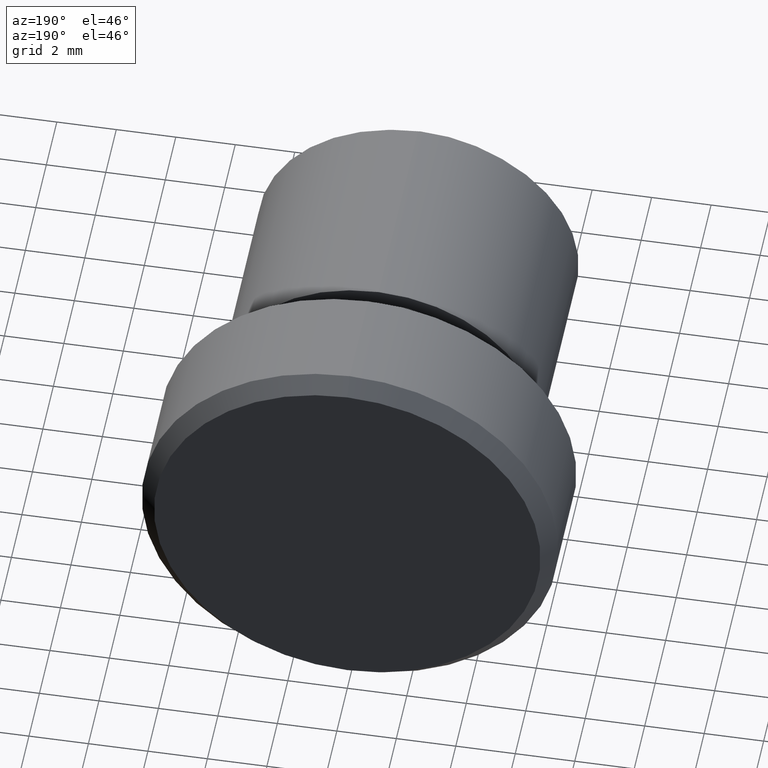
[diagram: clean part render]
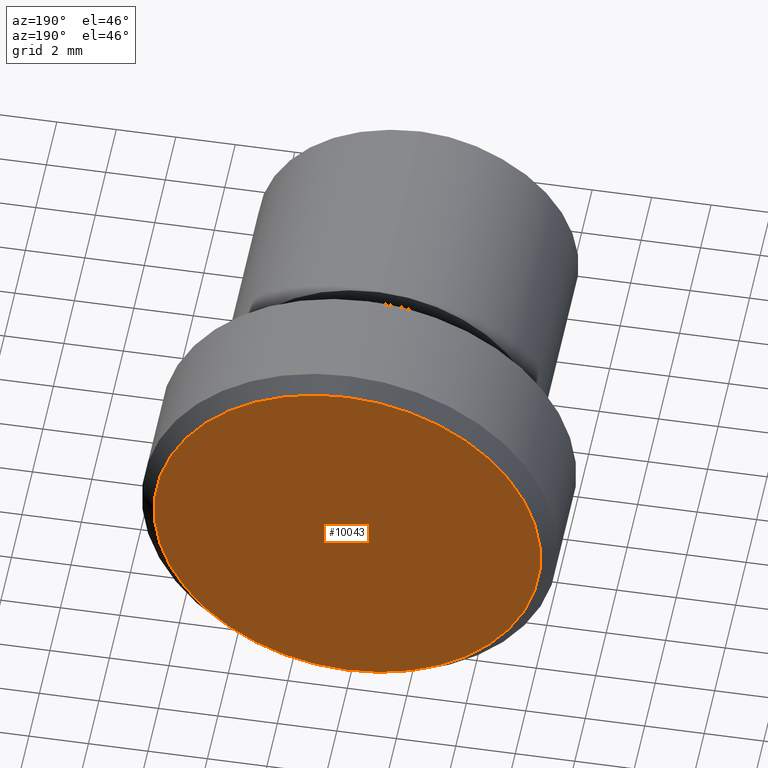
[diagram: same view with one face highlighted and labeled with its STEP entity id]
A machine part, auxiliary view. The second image highlights one B-rep face of the part: STEP entity #10043.
In plain terms, the highlighted planar face has unit normal (0, 1, 0).
Its self-contained STEP definition (entity closure, byte-faithful):
#461 = CARTESIAN_POINT ( 'NONE',  ( 8.266365894244631400E-016, 14.00000000000000000, 6.499999999999995600 ) ) ;
#526 = AXIS2_PLACEMENT_3D ( 'NONE', #13208, #11187, #8978 ) ;
#2485 = CIRCLE ( 'NONE', #526, 6.499999999999995600 ) ;
#3190 = EDGE_CURVE ( 'NONE', #13867, #11149, #2485, .T. ) ;
#3290 = AXIS2_PLACEMENT_3D ( 'NONE', #9379, #12748, #9516 ) ;
#3619 = ORIENTED_EDGE ( 'NONE', *, *, #3190, .T. ) ;
#3673 = DIRECTION ( 'NONE',  ( 0.0000000000000000000, -0.0000000000000000000, 1.000000000000000000 ) ) ;
#3719 = DIRECTION ( 'NONE',  ( 0.0000000000000000000, 1.000000000000000000, 0.0000000000000000000 ) ) ;
#4859 = FACE_OUTER_BOUND ( 'NONE', #8610, .T. ) ;
#5849 = CARTESIAN_POINT ( 'NONE',  ( 0.0000000000000000000, 14.00000000000000000, 0.0000000000000000000 ) ) ;
#6900 = PLANE ( 'NONE',  #8466 ) ;
#7232 = CIRCLE ( 'NONE', #3290, 6.499999999999995600 ) ;
#8466 = AXIS2_PLACEMENT_3D ( 'NONE', #5849, #3719, #3673 ) ;
#8610 = EDGE_LOOP ( 'NONE', ( #3619, #11785 ) ) ;
#8978 = DIRECTION ( 'NONE',  ( 0.0000000000000000000, 0.0000000000000000000, 1.000000000000000000 ) ) ;
#9379 = CARTESIAN_POINT ( 'NONE',  ( 0.0000000000000000000, 14.00000000000000000, 0.0000000000000000000 ) ) ;
#9516 = DIRECTION ( 'NONE',  ( 0.0000000000000000000, 0.0000000000000000000, 1.000000000000000000 ) ) ;
#10043 = ADVANCED_FACE ( 'NONE', ( #4859 ), #6900, .T. ) ;
#10530 = EDGE_CURVE ( 'NONE', #11149, #13867, #7232, .T. ) ;
#11149 = VERTEX_POINT ( 'NONE', #461 ) ;
#11187 = DIRECTION ( 'NONE',  ( 0.0000000000000000000, 1.000000000000000000, 0.0000000000000000000 ) ) ;
#11785 = ORIENTED_EDGE ( 'NONE', *, *, #10530, .T. ) ;
#11792 = CARTESIAN_POINT ( 'NONE',  ( 0.0000000000000000000, 14.00000000000000000, -6.499999999999995600 ) ) ;
#12748 = DIRECTION ( 'NONE',  ( 0.0000000000000000000, 1.000000000000000000, 0.0000000000000000000 ) ) ;
#13208 = CARTESIAN_POINT ( 'NONE',  ( 0.0000000000000000000, 14.00000000000000000, 0.0000000000000000000 ) ) ;
#13867 = VERTEX_POINT ( 'NONE', #11792 ) ;